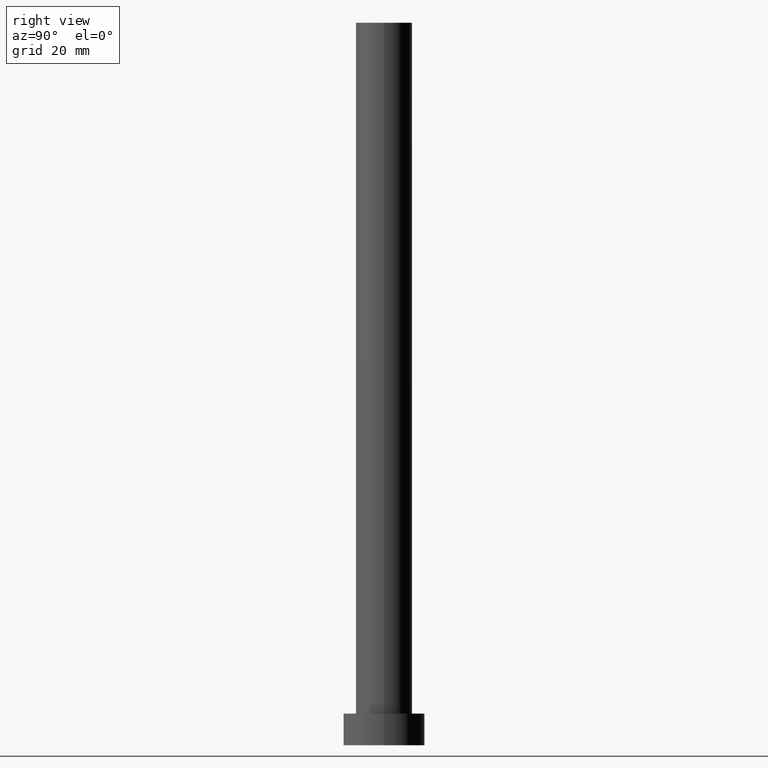
[diagram: clean part render]
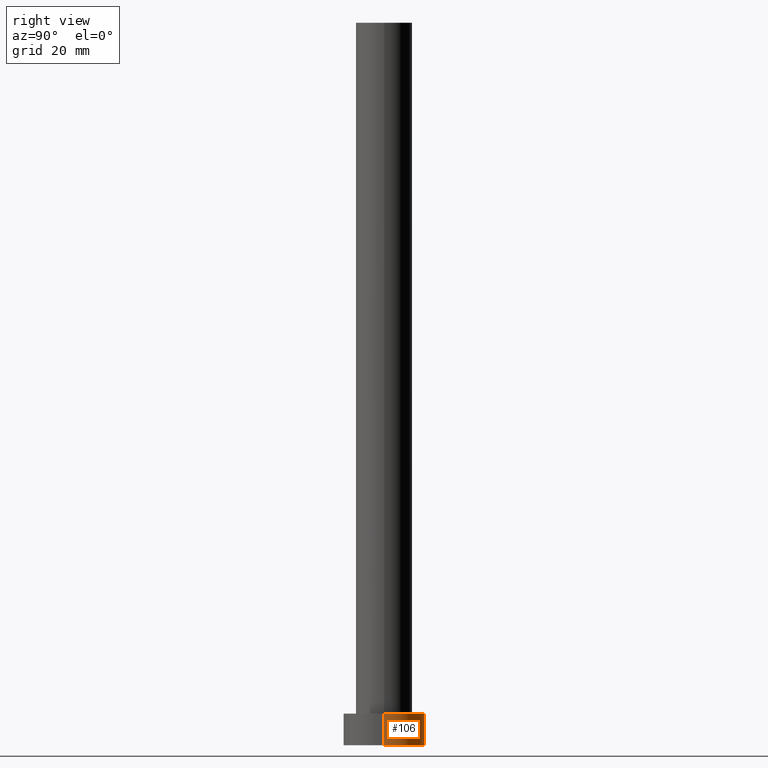
[diagram: same view with one face highlighted and labeled with its STEP entity id]
A machine part, right view. The second image highlights one B-rep face of the part: STEP entity #106.
In plain terms, the highlighted cylindrical surface (partial cylindrical patch) has radius 9 mm, axis along (-0, -0, -1).
Its self-contained STEP definition (entity closure, byte-faithful):
#14 = CARTESIAN_POINT ( 'NONE',  ( -9.000000000000000000, 0.000000000000000000, 7.000000000000000000 ) ) ;
#15 = CARTESIAN_POINT ( 'NONE',  ( 0.000000000000000000, 0.000000000000000000, 7.000000000000000000 ) ) ;
#17 = DIRECTION ( 'NONE',  ( 1.000000000000000000, 0.000000000000000000, 0.000000000000000000 ) ) ;
#20 = AXIS2_PLACEMENT_3D ( 'NONE', #142, #197, #242 ) ;
#31 = CARTESIAN_POINT ( 'NONE',  ( 0.000000000000000000, 0.000000000000000000, 7.000000000000000000 ) ) ;
#35 = EDGE_CURVE ( 'NONE', #121, #222, #159, .T. ) ;
#42 = ORIENTED_EDGE ( 'NONE', *, *, #52, .F. ) ;
#52 = EDGE_CURVE ( 'NONE', #121, #125, #112, .T. ) ;
#56 = ORIENTED_EDGE ( 'NONE', *, *, #186, .F. ) ;
#61 = ORIENTED_EDGE ( 'NONE', *, *, #250, .T. ) ;
#66 = VECTOR ( 'NONE', #92, 1000.000000000000000 ) ;
#92 = DIRECTION ( 'NONE',  ( -0.000000000000000000, -0.000000000000000000, -1.000000000000000000 ) ) ;
#106 = ADVANCED_FACE ( 'NONE', ( #215 ), #134, .T. ) ;
#111 = DIRECTION ( 'NONE',  ( 0.000000000000000000, 0.000000000000000000, 1.000000000000000000 ) ) ;
#112 = CIRCLE ( 'NONE', #232, 9.000000000000000000 ) ;
#114 = DIRECTION ( 'NONE',  ( -0.000000000000000000, -0.000000000000000000, -1.000000000000000000 ) ) ;
#117 = CARTESIAN_POINT ( 'NONE',  ( -9.000000000000000000, 0.000000000000000000, 7.000000000000000000 ) ) ;
#121 = VERTEX_POINT ( 'NONE', #231 ) ;
#125 = VERTEX_POINT ( 'NONE', #117 ) ;
#134 = CYLINDRICAL_SURFACE ( 'NONE', #187, 9.000000000000000000 ) ;
#136 = CARTESIAN_POINT ( 'NONE',  ( 9.000000000000000000, 1.102182119232617714E-15, 0.000000000000000000 ) ) ;
#142 = CARTESIAN_POINT ( 'NONE',  ( 0.000000000000000000, 0.000000000000000000, 0.000000000000000000 ) ) ;
#152 = DIRECTION ( 'NONE',  ( -0.000000000000000000, -0.000000000000000000, -1.000000000000000000 ) ) ;
#159 = LINE ( 'NONE', #171, #237 ) ;
#171 = CARTESIAN_POINT ( 'NONE',  ( 9.000000000000000000, 1.102182119232617714E-15, 7.000000000000000000 ) ) ;
#186 = EDGE_CURVE ( 'NONE', #125, #194, #192, .T. ) ;
#187 = AXIS2_PLACEMENT_3D ( 'NONE', #15, #114, #254 ) ;
#190 = CARTESIAN_POINT ( 'NONE',  ( -9.000000000000000000, 0.000000000000000000, 0.000000000000000000 ) ) ;
#192 = LINE ( 'NONE', #14, #66 ) ;
#194 = VERTEX_POINT ( 'NONE', #190 ) ;
#197 = DIRECTION ( 'NONE',  ( 0.000000000000000000, 0.000000000000000000, 1.000000000000000000 ) ) ;
#207 = ORIENTED_EDGE ( 'NONE', *, *, #35, .T. ) ;
#215 = FACE_OUTER_BOUND ( 'NONE', #225, .T. ) ;
#222 = VERTEX_POINT ( 'NONE', #136 ) ;
#225 = EDGE_LOOP ( 'NONE', ( #42, #207, #61, #56 ) ) ;
#231 = CARTESIAN_POINT ( 'NONE',  ( 9.000000000000000000, 1.102182119232617714E-15, 7.000000000000000000 ) ) ;
#232 = AXIS2_PLACEMENT_3D ( 'NONE', #31, #111, #17 ) ;
#237 = VECTOR ( 'NONE', #152, 1000.000000000000000 ) ;
#242 = DIRECTION ( 'NONE',  ( 1.000000000000000000, 0.000000000000000000, 0.000000000000000000 ) ) ;
#246 = CIRCLE ( 'NONE', #20, 9.000000000000000000 ) ;
#250 = EDGE_CURVE ( 'NONE', #222, #194, #246, .T. ) ;
#254 = DIRECTION ( 'NONE',  ( -1.000000000000000000, 0.000000000000000000, 0.000000000000000000 ) ) ;